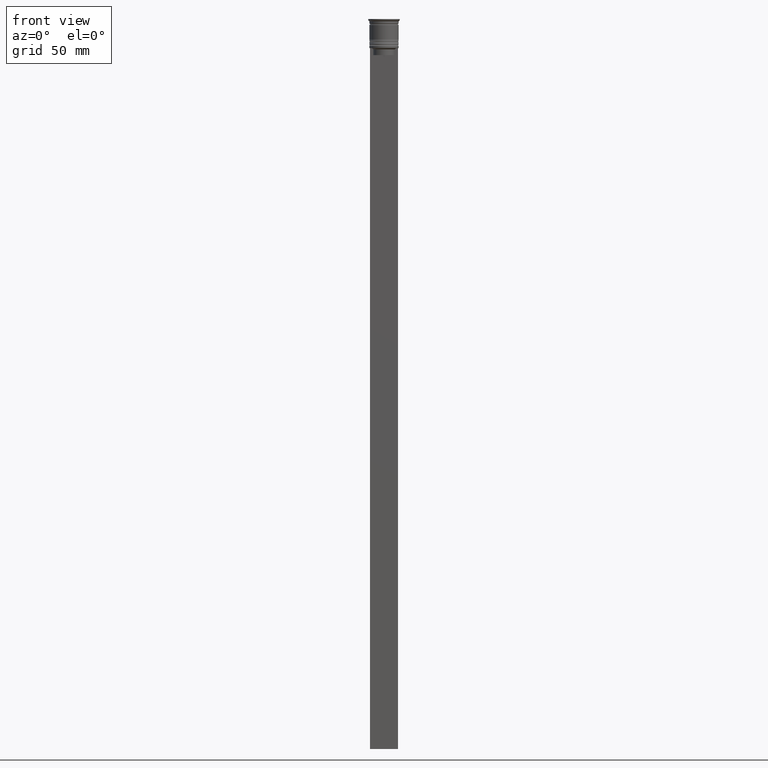
[diagram: clean part render]
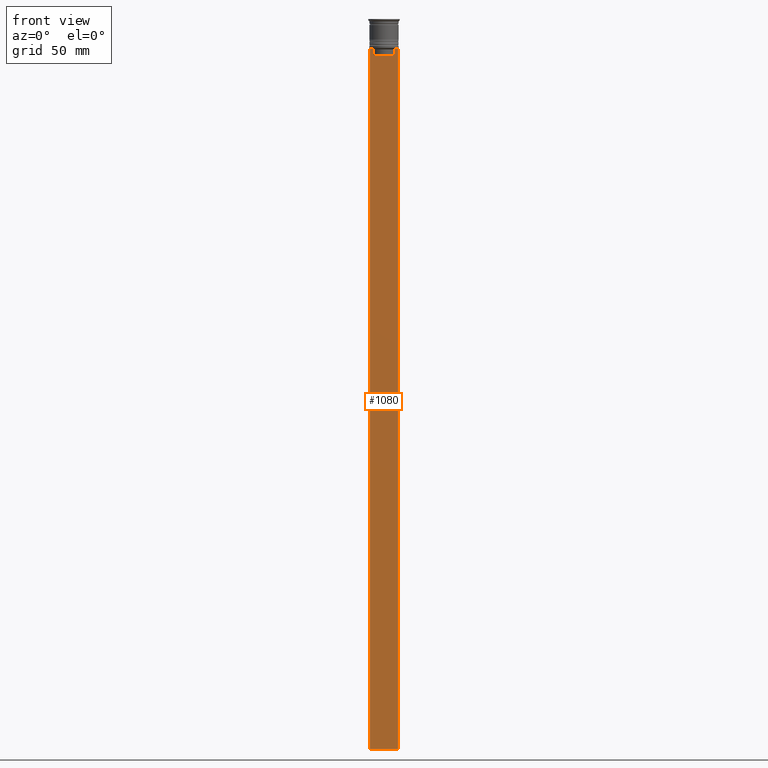
[diagram: same view with one face highlighted and labeled with its STEP entity id]
A machine part, front view. The second image highlights one B-rep face of the part: STEP entity #1080.
In plain terms, the highlighted planar face has unit normal (0, -1, -0).
Its self-contained STEP definition (entity closure, byte-faithful):
#41 = VERTEX_POINT ( 'NONE', #1546 ) ;
#43 = CARTESIAN_POINT ( 'NONE',  ( -4.790630915080664742, -0.5000000000000017764, -12.83338087185995491 ) ) ;
#45 = ORIENTED_EDGE ( 'NONE', *, *, #1778, .F. ) ;
#62 = EDGE_LOOP ( 'NONE', ( #1234, #1524, #1847, #933, #45, #1660, #749, #1495, #885, #1030 ) ) ;
#120 = EDGE_CURVE ( 'NONE', #297, #856, #518, .T. ) ;
#124 = B_SPLINE_CURVE_WITH_KNOTS ( 'NONE', 3,
 ( #580, #225, #43, #1133 ),
 .UNSPECIFIED., .F., .F.,
 ( 4, 4 ),
 ( 0.008759809102772709091, 0.009468778395565353653 ),
 .UNSPECIFIED. ) ;
#128 = DIRECTION ( 'NONE',  ( 0.000000000000000000, 0.000000000000000000, -1.000000000000000000 ) ) ;
#225 = CARTESIAN_POINT ( 'NONE',  ( -4.958169823806760412, -0.5000000000000017764, -12.66670956677067927 ) ) ;
#243 = B_SPLINE_CURVE_WITH_KNOTS ( 'NONE', 3,
 ( #2072, #797, #970, #1344 ),
 .UNSPECIFIED., .F., .F.,
 ( 4, 4 ),
 ( 0.02203698174624552780, 0.02275222543365896383 ),
 .UNSPECIFIED. ) ;
#290 = CARTESIAN_POINT ( 'NONE',  ( 6.000000000000016875, -0.5000000000000017764, -0.4584054212077061097 ) ) ;
#297 = VERTEX_POINT ( 'NONE', #2022 ) ;
#348 = VECTOR ( 'NONE', #2033, 1000.000000000000000 ) ;
#352 = EDGE_CURVE ( 'NONE', #1799, #41, #124, .T. ) ;
#374 = EDGE_CURVE ( 'NONE', #2319, #721, #1500, .T. ) ;
#383 = CARTESIAN_POINT ( 'NONE',  ( 5.125670687822231564, -0.5000000000000017764, -12.50000000000000000 ) ) ;
#412 = VECTOR ( 'NONE', #128, 1000.000000000000000 ) ;
#443 = CARTESIAN_POINT ( 'NONE',  ( -5.999999999999983125, -0.5000000000000017764, -312.5000000000000000 ) ) ;
#518 = LINE ( 'NONE', #1930, #412 ) ;
#520 = DIRECTION ( 'NONE',  ( 1.000000000000000000, 0.000000000000000000, 0.000000000000000000 ) ) ;
#536 = DIRECTION ( 'NONE',  ( 0.000000000000000000, -1.000000000000000000, -0.000000000000000000 ) ) ;
#567 = EDGE_CURVE ( 'NONE', #1466, #856, #669, .T. ) ;
#580 = CARTESIAN_POINT ( 'NONE',  ( -5.125670687822231564, -0.5000000000000017764, -12.50000000000000000 ) ) ;
#593 = DIRECTION ( 'NONE',  ( 0.000000000000000000, 0.000000000000000000, -1.000000000000000000 ) ) ;
#669 = LINE ( 'NONE', #833, #1481 ) ;
#721 = VERTEX_POINT ( 'NONE', #2151 ) ;
#749 = ORIENTED_EDGE ( 'NONE', *, *, #840, .F. ) ;
#797 = CARTESIAN_POINT ( 'NONE',  ( 4.790630799407577634, -0.5000000000000017764, -12.83338098686238915 ) ) ;
#832 = VERTEX_POINT ( 'NONE', #1889 ) ;
#833 = CARTESIAN_POINT ( 'NONE',  ( 6.000000000000016875, -0.5000000000000017764, -312.5000000000000000 ) ) ;
#840 = EDGE_CURVE ( 'NONE', #1549, #2319, #243, .T. ) ;
#856 = VERTEX_POINT ( 'NONE', #443 ) ;
#885 = ORIENTED_EDGE ( 'NONE', *, *, #1681, .F. ) ;
#894 = PLANE ( 'NONE',  #1256 ) ;
#933 = ORIENTED_EDGE ( 'NONE', *, *, #567, .F. ) ;
#937 = CARTESIAN_POINT ( 'NONE',  ( 4.623040125285526436, -0.5000000000000017764, -13.00000000000000178 ) ) ;
#962 = DIRECTION ( 'NONE',  ( 1.000000000000000000, 0.000000000000000000, 0.000000000000000000 ) ) ;
#970 = CARTESIAN_POINT ( 'NONE',  ( 4.958169719475987947, -0.5000000000000017764, -12.66670967060858111 ) ) ;
#1030 = ORIENTED_EDGE ( 'NONE', *, *, #1267, .F. ) ;
#1032 = LINE ( 'NONE', #1588, #1638 ) ;
#1056 = CARTESIAN_POINT ( 'NONE',  ( 6.000000000000016875, -0.5000000000000017764, -12.50000000000000000 ) ) ;
#1080 = ADVANCED_FACE ( 'NONE', ( #2182 ), #894, .T. ) ;
#1133 = CARTESIAN_POINT ( 'NONE',  ( -4.623040125285526436, -0.5000000000000017764, -13.00000000000000178 ) ) ;
#1234 = ORIENTED_EDGE ( 'NONE', *, *, #352, .F. ) ;
#1256 = AXIS2_PLACEMENT_3D ( 'NONE', #1977, #536, #1595 ) ;
#1267 = EDGE_CURVE ( 'NONE', #41, #2039, #1503, .T. ) ;
#1271 = LINE ( 'NONE', #1056, #1636 ) ;
#1344 = CARTESIAN_POINT ( 'NONE',  ( 5.125670687822231564, -0.5000000000000017764, -12.50000000000000000 ) ) ;
#1383 = DIRECTION ( 'NONE',  ( -1.000000000000000000, 0.000000000000000000, 0.000000000000000000 ) ) ;
#1393 = DIRECTION ( 'NONE',  ( 1.000000000000000000, 0.000000000000000000, 0.000000000000000000 ) ) ;
#1424 = EDGE_CURVE ( 'NONE', #297, #1799, #1271, .T. ) ;
#1466 = VERTEX_POINT ( 'NONE', #1770 ) ;
#1481 = VECTOR ( 'NONE', #1383, 1000.000000000000000 ) ;
#1495 = ORIENTED_EDGE ( 'NONE', *, *, #2078, .F. ) ;
#1500 = LINE ( 'NONE', #1710, #2122 ) ;
#1503 = LINE ( 'NONE', #2219, #2309 ) ;
#1524 = ORIENTED_EDGE ( 'NONE', *, *, #1424, .F. ) ;
#1546 = CARTESIAN_POINT ( 'NONE',  ( -4.623040125285526436, -0.5000000000000017764, -13.00000000000000178 ) ) ;
#1549 = VERTEX_POINT ( 'NONE', #937 ) ;
#1588 = CARTESIAN_POINT ( 'NONE',  ( 0.000000000000000000, -0.5000000000000022204, -15.50000000000000000 ) ) ;
#1595 = DIRECTION ( 'NONE',  ( 0.000000000000000000, 0.000000000000000000, -1.000000000000000000 ) ) ;
#1636 = VECTOR ( 'NONE', #520, 1000.000000000000000 ) ;
#1638 = VECTOR ( 'NONE', #1393, 1000.000000000000000 ) ;
#1660 = ORIENTED_EDGE ( 'NONE', *, *, #374, .F. ) ;
#1669 = CARTESIAN_POINT ( 'NONE',  ( -4.623040125285526436, -0.5000000000000022204, -15.50000000000000000 ) ) ;
#1681 = EDGE_CURVE ( 'NONE', #2039, #832, #1032, .T. ) ;
#1710 = CARTESIAN_POINT ( 'NONE',  ( 6.000000000000016875, -0.5000000000000017764, -12.50000000000000000 ) ) ;
#1770 = CARTESIAN_POINT ( 'NONE',  ( 6.000000000000016875, -0.5000000000000017764, -312.5000000000000000 ) ) ;
#1777 = DIRECTION ( 'NONE',  ( 0.000000000000000000, 0.000000000000000000, -1.000000000000000000 ) ) ;
#1778 = EDGE_CURVE ( 'NONE', #721, #1466, #1959, .T. ) ;
#1799 = VERTEX_POINT ( 'NONE', #2144 ) ;
#1847 = ORIENTED_EDGE ( 'NONE', *, *, #120, .T. ) ;
#1879 = LINE ( 'NONE', #1890, #348 ) ;
#1889 = CARTESIAN_POINT ( 'NONE',  ( 4.623040125285526436, -0.5000000000000022204, -15.50000000000000000 ) ) ;
#1890 = CARTESIAN_POINT ( 'NONE',  ( 4.623040125285526436, -0.5000000000000017764, 0.000000000000000000 ) ) ;
#1930 = CARTESIAN_POINT ( 'NONE',  ( -5.999999999999983125, -0.5000000000000017764, -0.4584054212077061097 ) ) ;
#1947 = VECTOR ( 'NONE', #1777, 1000.000000000000000 ) ;
#1959 = LINE ( 'NONE', #290, #1947 ) ;
#1977 = CARTESIAN_POINT ( 'NONE',  ( 6.000000000000016875, -0.5000000000000017764, -0.4584054212077061097 ) ) ;
#2022 = CARTESIAN_POINT ( 'NONE',  ( -5.999999999999983125, -0.5000000000000017764, -12.50000000000000000 ) ) ;
#2033 = DIRECTION ( 'NONE',  ( -0.000000000000000000, -0.000000000000000000, 1.000000000000000000 ) ) ;
#2039 = VERTEX_POINT ( 'NONE', #1669 ) ;
#2072 = CARTESIAN_POINT ( 'NONE',  ( 4.623040125285526436, -0.5000000000000017764, -13.00000000000000178 ) ) ;
#2078 = EDGE_CURVE ( 'NONE', #832, #1549, #1879, .T. ) ;
#2122 = VECTOR ( 'NONE', #962, 1000.000000000000000 ) ;
#2144 = CARTESIAN_POINT ( 'NONE',  ( -5.125670687822231564, -0.5000000000000017764, -12.50000000000000000 ) ) ;
#2151 = CARTESIAN_POINT ( 'NONE',  ( 6.000000000000016875, -0.5000000000000017764, -12.50000000000000000 ) ) ;
#2182 = FACE_OUTER_BOUND ( 'NONE', #62, .T. ) ;
#2219 = CARTESIAN_POINT ( 'NONE',  ( -4.623040125285526436, -0.5000000000000017764, 0.000000000000000000 ) ) ;
#2309 = VECTOR ( 'NONE', #593, 1000.000000000000000 ) ;
#2319 = VERTEX_POINT ( 'NONE', #383 ) ;